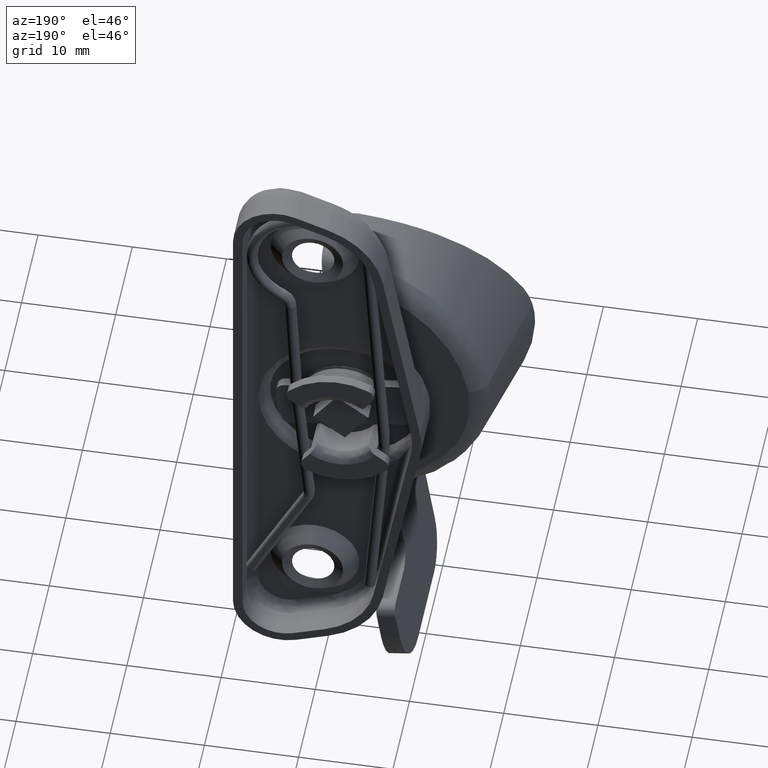
[diagram: clean part render]
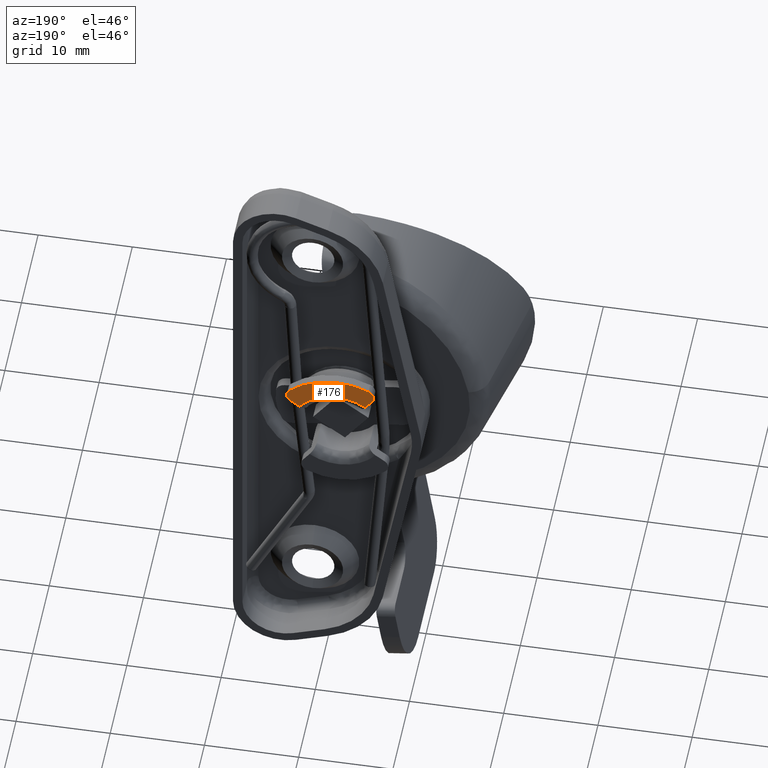
[diagram: same view with one face highlighted and labeled with its STEP entity id]
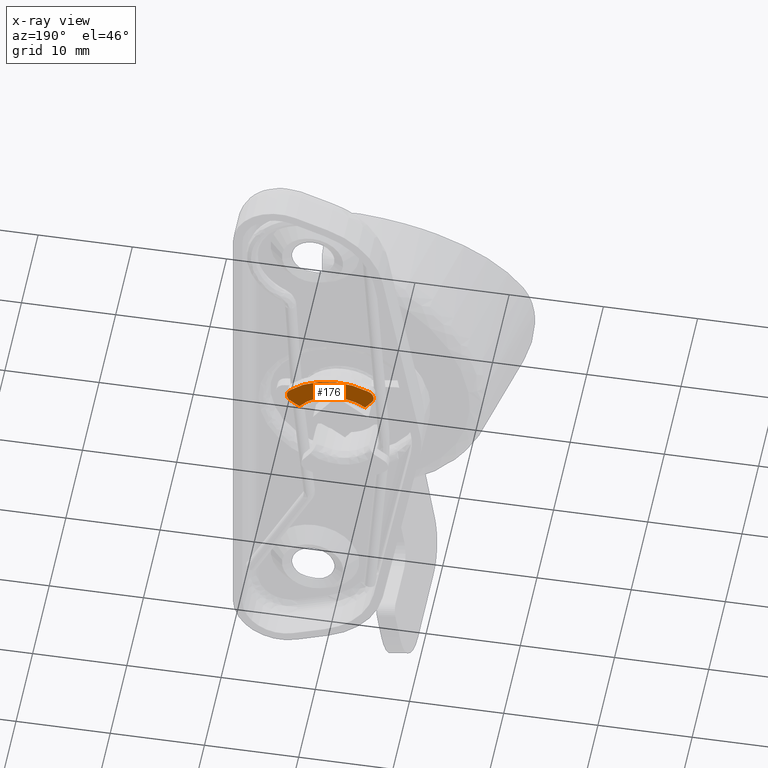
[diagram: x-ray of the same camera — body ghosted, the highlighted face saturated]
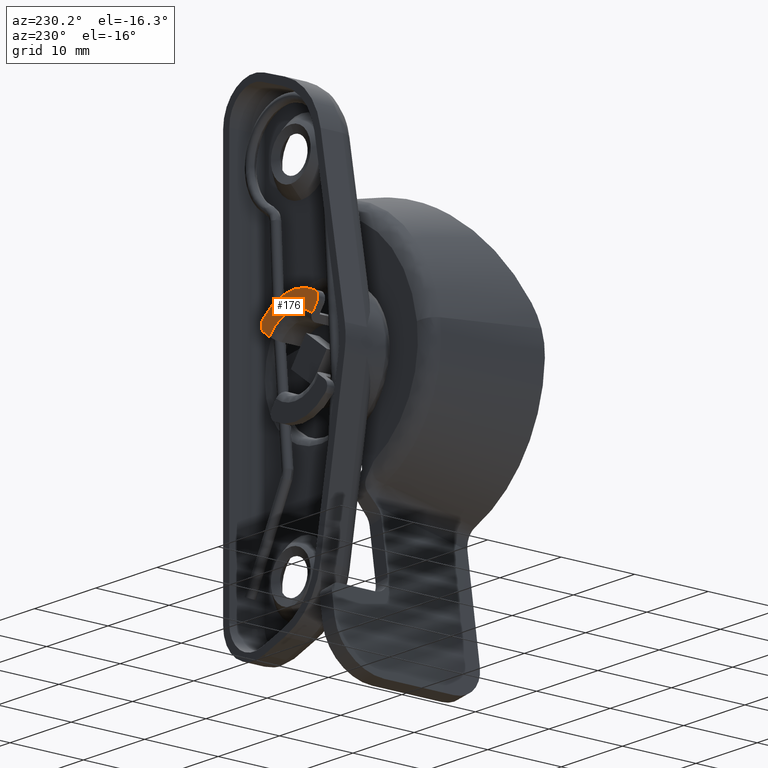
[diagram: same view with one face highlighted and labeled with its STEP entity id]
A machine part, auxiliary view. The second image highlights one B-rep face of the part: STEP entity #176.
The next image is the same camera in x-ray: the body ghosted, the highlighted face saturated — about 0% of this face is hidden behind the body in this view.
A second angle (auxiliary view) of the same face is appended — the face is thin or edge-on in the first view.
In plain terms, the highlighted planar face has unit normal (0, -1, 0).
Its self-contained STEP definition (entity closure, byte-faithful):
#176=ADVANCED_FACE('',(#605),#604,.F.);
#604=PLANE('',#2431);
#605=FACE_OUTER_BOUND('',#2432,.T.);
#2428=CARTESIAN_POINT('',(-2.77047584223E+01,8.00000000000E+00,3.90726275452E+00));
#2429=DIRECTION('',(0.00000000000E+00,-1.00000000000E+00,0.00000000000E+00));
#2430=DIRECTION('',(9.88393614580E-01,0.00000000000E+00,-1.51914655832E-01));
#2431=AXIS2_PLACEMENT_3D('',#2428,#2429,#2430);
#2432=EDGE_LOOP('',(#4046,#4047,#4048,#4049,#4050,#4051));
#4046=ORIENTED_EDGE('',*,*,#4918,.T.);
#4047=ORIENTED_EDGE('',*,*,#4919,.F.);
#4048=ORIENTED_EDGE('',*,*,#4920,.T.);
#4049=ORIENTED_EDGE('',*,*,#4921,.F.);
#4050=ORIENTED_EDGE('',*,*,#4922,.T.);
#4051=ORIENTED_EDGE('',*,*,#4923,.F.);
#4918=EDGE_CURVE('',#6044,#6045,#6046,.T.);
#4919=EDGE_CURVE('',#6052,#6045,#6053,.T.);
#4920=EDGE_CURVE('',#6052,#6059,#6060,.T.);
#4921=EDGE_CURVE('',#6066,#6059,#6067,.T.);
#4922=EDGE_CURVE('',#6066,#6073,#6074,.T.);
#4923=EDGE_CURVE('',#6044,#6073,#6080,.T.);
#6044=VERTEX_POINT('',#8917);
#6045=VERTEX_POINT('',#8918);
#6046=LINE('',#8919,#8920);
#6052=VERTEX_POINT('',#8922);
#6053=CIRCLE('',#8926,5.00000000000E+00);
#6059=VERTEX_POINT('',#8927);
#6060=LINE('',#8928,#8929);
#6066=VERTEX_POINT('',#8931);
#6067=CIRCLE('',#8935,1.00000000000E+00);
#6073=VERTEX_POINT('',#8936);
#6074=CIRCLE('',#8940,7.25000000000E+00);
#6080=CIRCLE('',#8944,1.00000000000E+00);
#8917=CARTESIAN_POINT('',(-1.70254255915E+01,8.00000000000E+00,3.64912447760E+00));
#8918=CARTESIAN_POINT('',(-1.79684014469E+01,8.00000000000E+00,2.95739972027E+00));
#8919=CARTESIAN_POINT('',(-1.70254255915E+01,8.00000000000E+00,3.64912447760E+00));
#8920=VECTOR('',#8921,1.16948133963E+00);
#8921=DIRECTION('',(-8.06319710652E-01,0.00000000000E+00,-5.91479944051E-01));
#8922=CARTESIAN_POINT('',(-2.49573997204E+01,8.00000000000E+00,4.03159855328E+00));
#8923=CARTESIAN_POINT('',(-2.20000000001E+01,8.00000000000E+00,2.10356686765E-11));
#8924=DIRECTION('',(0.00000000000E+00,1.00000000000E+00,0.00000000000E+00));
#8925=DIRECTION('',(-9.88393614580E-01,-0.00000000000E+00,1.51914655832E-01));
#8926=AXIS2_PLACEMENT_3D('',#8923,#8924,#8925);
#8927=CARTESIAN_POINT('',(-2.56491244777E+01,8.00000000000E+00,4.97457440866E+00));
#8928=CARTESIAN_POINT('',(-2.49573997204E+01,8.00000000000E+00,4.03159855328E+00));
#8929=VECTOR('',#8930,1.16948133963E+00);
#8930=DIRECTION('',(-5.91479944051E-01,0.00000000000E+00,8.06319710652E-01));
#8931=CARTESIAN_POINT('',(-2.52976535298E+01,8.00000000000E+00,6.45662304914E+00));
#8932=CARTESIAN_POINT('',(-2.48428047671E+01,8.00000000000E+00,5.56605435271E+00));
#8933=DIRECTION('',(-0.00000000000E+00,-1.00000000000E+00,0.00000000000E+00));
#8934=DIRECTION('',(-8.06319710652E-01,0.00000000000E+00,-5.91479944051E-01));
#8935=AXIS2_PLACEMENT_3D('',#8932,#8933,#8934);
#8936=CARTESIAN_POINT('',(-1.69156104212E+01,8.00000000000E+00,5.16831525837E+00));
#8937=CARTESIAN_POINT('',(-2.20000000001E+01,8.00000000000E+00,2.10356686765E-11));
#8938=DIRECTION('',(0.00000000000E+00,1.00000000000E+00,0.00000000000E+00));
#8939=DIRECTION('',(-9.88393614580E-01,-0.00000000000E+00,1.51914655832E-01));
#8940=AXIS2_PLACEMENT_3D('',#8937,#8938,#8939);
#8941=CARTESIAN_POINT('',(-1.76169055355E+01,8.00000000000E+00,4.45544418825E+00));
#8942=DIRECTION('',(0.00000000000E+00,-1.00000000000E+00,-0.00000000000E+00));
#8943=DIRECTION('',(-9.88393614580E-01,-0.00000000000E+00,1.51914655832E-01));
#8944=AXIS2_PLACEMENT_3D('',#8941,#8942,#8943);